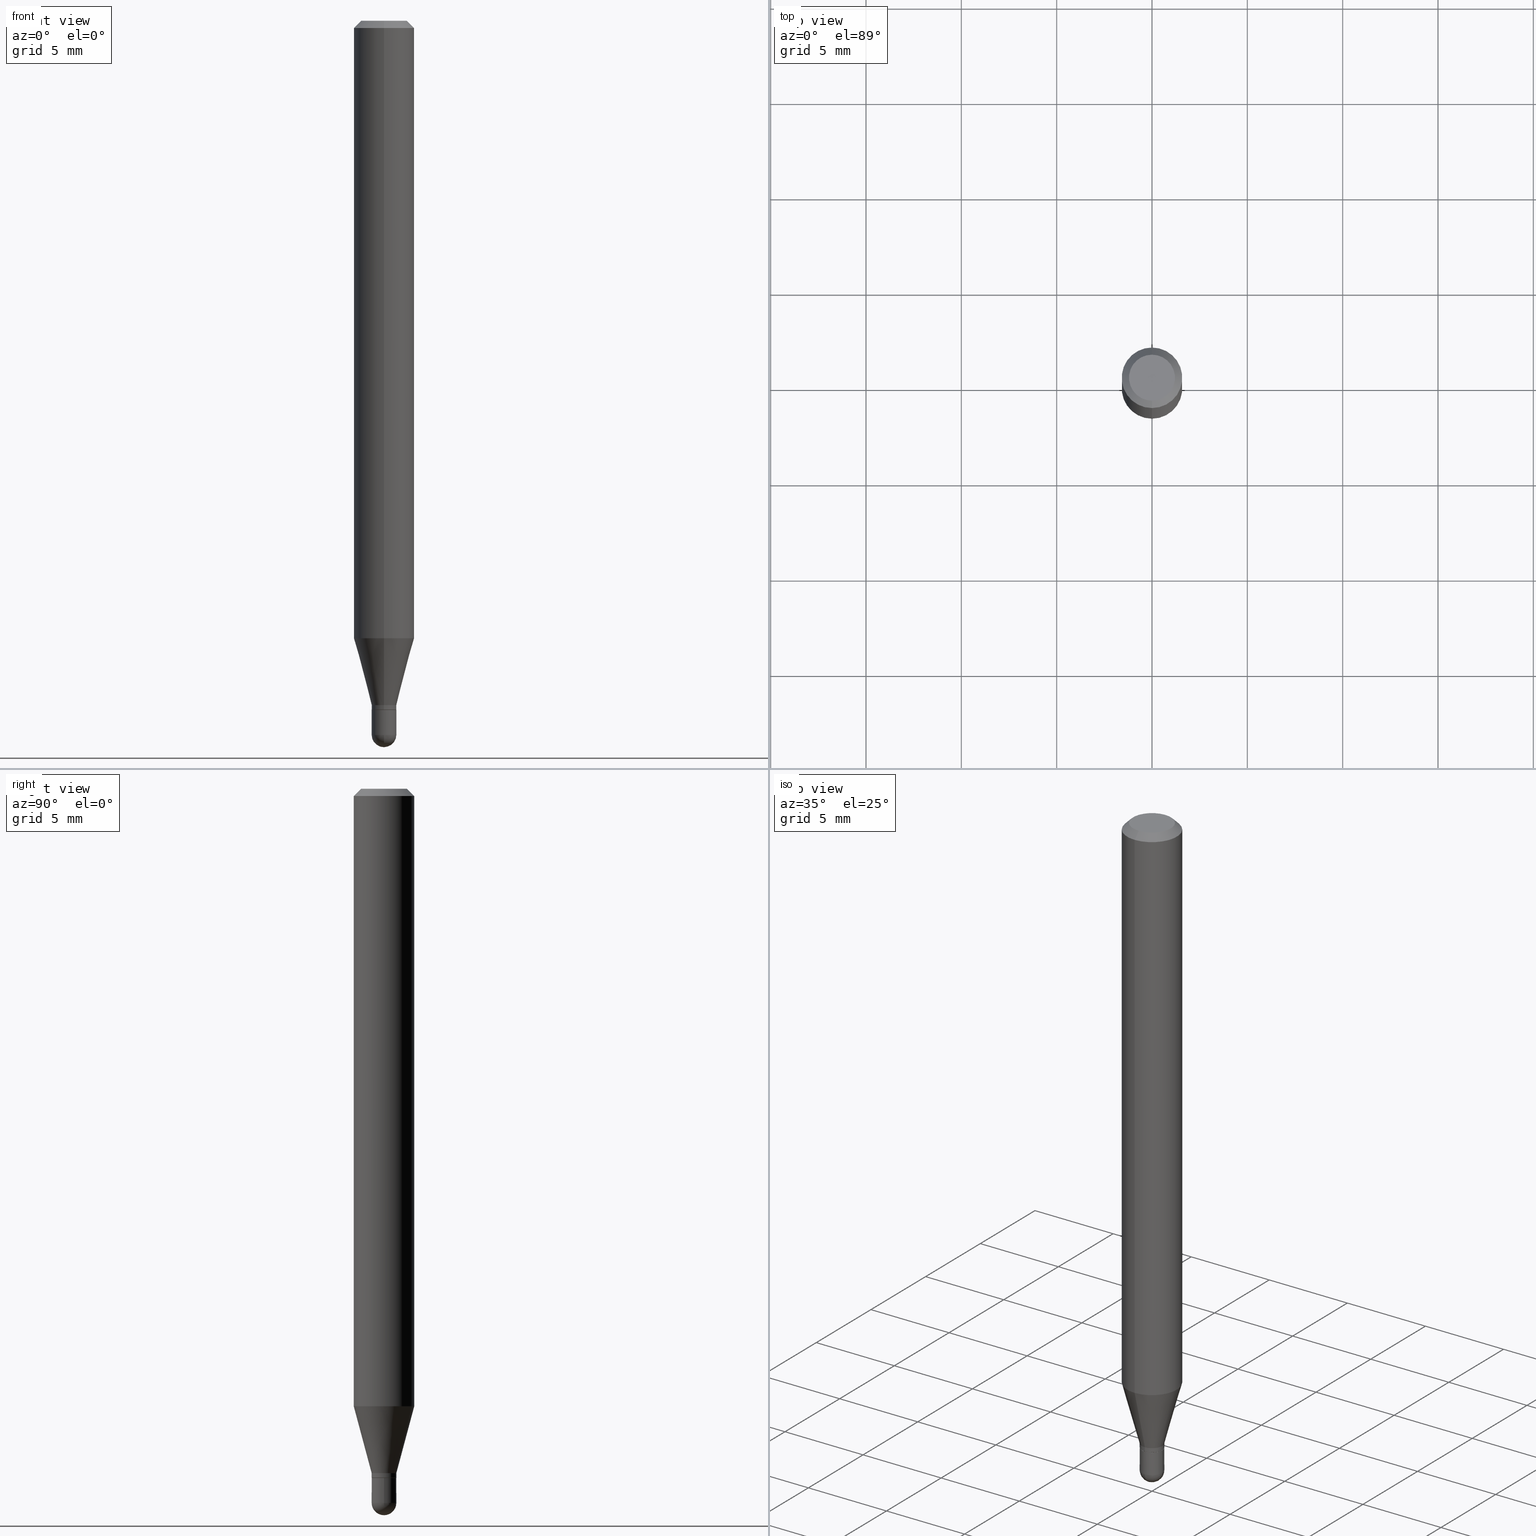
[diagram: canonical four-view strip — front | top / right | iso, engineering-drawing reading convention]
A machine part, canonical four-view strip (front | top / right | iso — engineering-drawing reading convention). The complete STEP part file that produces these views, byte-faithful:
ISO-10303-21;
HEADER;
FILE_DESCRIPTION (( 'STEP AP203' ),
    '1' );
FILE_NAME ('00786.STEP',
    '2024-03-07T18:21:10',
    ( '' ),
    ( '' ),
    'SwSTEP 2.0',
    'SolidWorks 2023',
    '' );
FILE_SCHEMA (( 'CONFIG_CONTROL_DESIGN' ));
ENDSEC;

DATA;
#1 = CYLINDRICAL_SURFACE ( 'NONE', #96, 0.02549999999999999836 ) ;
#2 = AXIS2_PLACEMENT_3D ( 'NONE', #325, #208, #285 ) ;
#3 = AXIS2_PLACEMENT_3D ( 'NONE', #170, #401, #89 ) ;
#4 = AXIS2_PLACEMENT_3D ( 'NONE', #120, #311, #229 ) ;
#5 = DIRECTION ( 'NONE',  ( 6.982962677686266711E-15, 1.000000000000000000, 0.000000000000000000 ) ) ;
#6 = ADVANCED_FACE ( 'NONE', ( #394 ), #131, .T. ) ;
#7 = FACE_OUTER_BOUND ( 'NONE', #431, .T. ) ;
#8 = CARTESIAN_POINT ( 'NONE',  ( 2.166988315906945118E-46, -3.093852490145761487E-32, -8.861192345705441465E-18 ) ) ;
#9 = APPROVAL_STATUS ( 'not_yet_approved' ) ;
#10 = CIRCLE ( 'NONE', #2, 0.02499999999999999792 ) ;
#11 = CARTESIAN_POINT ( 'NONE',  ( 4.364351673553919652E-16, 0.06249999999999995143, -0.01500000000000022669 ) ) ;
#12 = EDGE_CURVE ( 'NONE', #41, #496, #98, .T. ) ;
#13 = PERSON_AND_ORGANIZATION_ROLE ( 'design_supplier' ) ;
#14 = DIRECTION ( 'NONE',  ( -2.445481636517202422E-29, 3.491462965077369898E-15, 1.000000000000000000 ) ) ;
#15 = DATE_AND_TIME ( #108, #97 ) ;
#16 = ORIENTED_EDGE ( 'NONE', *, *, #450, .T. ) ;
#17 = DIRECTION ( 'NONE',  ( 6.982962677686266711E-15, 1.000000000000000000, 0.000000000000000000 ) ) ;
#18 = PERSON_AND_ORGANIZATION ( #94, #320 ) ;
#19 = LOCAL_TIME ( 13, 21, 10.00000000000000000, #217 ) ;
#20 = CARTESIAN_POINT ( 'NONE',  ( -4.364351673553916201E-16, -0.06250000000000000000, 2.182164353173356186E-16 ) ) ;
#21 = LENGTH_MEASURE_WITH_UNIT ( LENGTH_MEASURE( 0.02539999999999999897 ), #369 );
#22 = ORIENTED_EDGE ( 'NONE', *, *, #209, .T. ) ;
#23 = CARTESIAN_POINT ( 'NONE',  ( -1.745740669421218346E-16, -0.02500000000000496617, -1.423000000000000043 ) ) ;
#24 = ORIENTED_EDGE ( 'NONE', *, *, #113, .F. ) ;
#25 = DIRECTION ( 'NONE',  ( -2.445481636517202422E-29, 3.491462965077369898E-15, 1.000000000000000000 ) ) ;
#26 = EDGE_CURVE ( 'NONE', #274, #433, #76, .T. ) ;
#27 = ORIENTED_EDGE ( 'NONE', *, *, #26, .T. ) ;
#28 = CONICAL_SURFACE ( 'NONE', #99, 0.02549999999999992550, 0.2617993877991502960 ) ;
#29 = CONICAL_SURFACE ( 'NONE', #507, 0.02499999999999999792, 0.7853981633974739252 ) ;
#30 = DIRECTION ( 'NONE',  ( -6.982962677686266711E-15, -1.000000000000000000, 0.000000000000000000 ) ) ;
#31 = CLOSED_SHELL ( 'NONE', ( #298, #6, #158, #202, #38 ) ) ;
#32 = ORIENTED_EDGE ( 'NONE', *, *, #87, .F. ) ;
#33 = VECTOR ( 'NONE', #305, 39.37007874015748143 ) ;
#34 = DIRECTION ( 'NONE',  ( -2.445481636517202422E-29, 3.491462965077369898E-15, 1.000000000000000000 ) ) ;
#35 = ORIENTED_EDGE ( 'NONE', *, *, #323, .F. ) ;
#36 = PLANE ( 'NONE',  #4 ) ;
#37 = ORIENTED_EDGE ( 'NONE', *, *, #332, .F. ) ;
#38 = ADVANCED_FACE ( 'NONE', ( #7 ), #1, .T. ) ;
#39 = DIRECTION ( 'NONE',  ( -2.445481636517202422E-29, 3.491462965077369898E-15, 1.000000000000000000 ) ) ;
#40 = CIRCLE ( 'NONE', #271, 0.06250000000000000000 ) ;
#41 = VERTEX_POINT ( 'NONE', #324 ) ;
#42 = DIRECTION ( 'NONE',  ( -1.000000000000000000, 6.982962677686265922E-15, -4.876176775795935793E-29 ) ) ;
#43 = LINE ( 'NONE', #444, #449 ) ;
#44 = CC_DESIGN_DATE_AND_TIME_ASSIGNMENT ( #419, #58, ( #154 ) ) ;
#45 = DIRECTION ( 'NONE',  ( -2.445468806185136597E-29, 3.491481338843145583E-15, 1.000000000000000000 ) ) ;
#46 = CC_DESIGN_PERSON_AND_ORGANIZATION_ASSIGNMENT ( #54, #136, ( #49 ) ) ;
#47 = CONICAL_SURFACE ( 'NONE', #453, 0.02499999999999999792, 0.7853981633974739252 ) ;
#48 = EDGE_CURVE ( 'NONE', #257, #138, #328, .T. ) ;
#49 = SECURITY_CLASSIFICATION ( '', '', #172 ) ;
#50 = AXIS2_PLACEMENT_3D ( 'NONE', #273, #344, #236 ) ;
#51 = CARTESIAN_POINT ( 'NONE',  ( 1.780655482810359379E-16, 0.02549999999999486011, -1.474500000000000144 ) ) ;
#52 = VERTEX_POINT ( 'NONE', #51 ) ;
#53 = CARTESIAN_POINT ( 'NONE',  ( -4.364351673553606080E-16, -0.06250000000000446865, -1.274914120119951644 ) ) ;
#54 = PERSON_AND_ORGANIZATION ( #94, #320 ) ;
#55 = ORIENTED_EDGE ( 'NONE', *, *, #178, .F. ) ;
#56 = AXIS2_PLACEMENT_3D ( 'NONE', #79, #25, #462 ) ;
#57 = DIRECTION ( 'NONE',  ( 4.937700262164548042E-15, 0.7071067811865451302, -0.7071067811865499042 ) ) ;
#58 = DATE_TIME_ROLE ( 'creation_date' ) ;
#59 = VERTEX_POINT ( 'NONE', #164 ) ;
#60 = LINE ( 'NONE', #452, #73 ) ;
#61 = EDGE_LOOP ( 'NONE', ( #228, #307 ) ) ;
#62 = DIRECTION ( 'NONE',  ( 6.982962677686265922E-15, 1.000000000000000000, -3.483106191921935554E-15 ) ) ;
#63 = APPROVAL_DATE_TIME ( #415, #354 ) ;
#64 = ORIENTED_EDGE ( 'NONE', *, *, #412, .T. ) ;
#65 =( GEOMETRIC_REPRESENTATION_CONTEXT ( 3 ) GLOBAL_UNCERTAINTY_ASSIGNED_CONTEXT ( ( #132 ) ) GLOBAL_UNIT_ASSIGNED_CONTEXT ( ( #174, #413, #182 ) ) REPRESENTATION_CONTEXT ( 'NONE', 'WORKASPACE' ) );
#66 = DIRECTION ( 'NONE',  ( -2.445481636517202422E-29, 3.491462965077369898E-15, 1.000000000000000000 ) ) ;
#67 = COORDINATED_UNIVERSAL_TIME_OFFSET ( 5, 0, .BEHIND. ) ;
#68 = DIRECTION ( 'NONE',  ( -2.445481636517202422E-29, 3.491462965077369898E-15, 1.000000000000000000 ) ) ;
#69 = ORIENTED_EDGE ( 'NONE', *, *, #165, .T. ) ;
#70 = EDGE_CURVE ( 'NONE', #422, #433, #43, .T. ) ;
#71 = LINE ( 'NONE', #506, #478 ) ;
#72 = ORIENTED_EDGE ( 'NONE', *, *, #503, .F. ) ;
#73 = VECTOR ( 'NONE', #181, 39.37007874015748143 ) ;
#74 = CONICAL_SURFACE ( 'NONE', #240, 0.02549999999999992550, 0.2617993877991502960 ) ;
#75 = DIRECTION ( 'NONE',  ( -4.937700262164674260E-15, -0.7071067811865632269, 0.7071067811865319186 ) ) ;
#76 = CIRCLE ( 'NONE', #359, 0.06250000000000000000 ) ;
#77 = ORIENTED_EDGE ( 'NONE', *, *, #104, .F. ) ;
#78 = AXIS2_PLACEMENT_3D ( 'NONE', #103, #221, #215 ) ;
#79 = CARTESIAN_POINT ( 'NONE',  ( 0.000000000000000000, 0.000000000000000000, 0.000000000000000000 ) ) ;
#80 = ORIENTED_EDGE ( 'NONE', *, *, #129, .T. ) ;
#81 = DIRECTION ( 'NONE',  ( -6.982962677686266711E-15, -1.000000000000000000, 0.000000000000000000 ) ) ;
#82 = ORIENTED_EDGE ( 'NONE', *, *, #395, .F. ) ;
#83 = CARTESIAN_POINT ( 'NONE',  ( -1.780655482809647185E-16, -0.02550000000000486253, -1.413000000000000256 ) ) ;
#84 = DIRECTION ( 'NONE',  ( 1.000000000000000000, -6.982962677686275388E-15, 0.000000000000000000 ) ) ;
#85 = AXIS2_PLACEMENT_3D ( 'NONE', #493, #327, #171 ) ;
#86 = CARTESIAN_POINT ( 'NONE',  ( 4.440892098500935790E-16, 0.06249999999999553135, -1.274914120119952310 ) ) ;
#87 = EDGE_CURVE ( 'NONE', #230, #422, #427, .T. ) ;
#88 = DIRECTION ( 'NONE',  ( 1.000000000000000000, -6.982962677686266711E-15, 4.876176775795935793E-29 ) ) ;
#89 = DIRECTION ( 'NONE',  ( -6.982962677686266711E-15, -1.000000000000000000, 0.000000000000000000 ) ) ;
#90 = ORIENTED_EDGE ( 'NONE', *, *, #48, .T. ) ;
#91 = SPHERICAL_SURFACE ( 'NONE', #304, 0.02550000000000002612 ) ;
#92 = CALENDAR_DATE ( 2024, 7, 3 ) ;
#93 = EDGE_LOOP ( 'NONE', ( #301, #416, #77, #379 ) ) ;
#94 = PERSON ( 'UNSPECIFIED', 'UNSPECIFIED', 'UNSPECIFIED', ('UNSPECIFIED'), ('UNSPECIFIED'), ('UNSPECIFIED') ) ;
#95 = CARTESIAN_POINT ( 'NONE',  ( 3.603663080682576322E-29, -5.151312083462043978E-15, -1.474500000000000144 ) ) ;
#96 = AXIS2_PLACEMENT_3D ( 'NONE', #246, #45, #88 ) ;
#97 = LOCAL_TIME ( 13, 21, 10.00000000000000000, #67 ) ;
#98 = CIRCLE ( 'NONE', #3, 0.02549999999999992550 ) ;
#99 = AXIS2_PLACEMENT_3D ( 'NONE', #191, #34, #30 ) ;
#100 = DIRECTION ( 'NONE',  ( 1.000000000000000000, -6.982962677686265922E-15, 4.883557194083112340E-29 ) ) ;
#101 = COORDINATED_UNIVERSAL_TIME_OFFSET ( 5, 0, .BEHIND. ) ;
#102 = ORIENTED_EDGE ( 'NONE', *, *, #288, .T. ) ;
#103 = CARTESIAN_POINT ( 'NONE',  ( 3.478697627945721307E-29, -4.966606067822559678E-15, -1.422500000000000098 ) ) ;
#104 = EDGE_CURVE ( 'NONE', #496, #41, #122, .T. ) ;
#105 = APPROVAL_STATUS ( 'not_yet_approved' ) ;
#106 = ORIENTED_EDGE ( 'NONE', *, *, #209, .F. ) ;
#107 = FACE_OUTER_BOUND ( 'NONE', #405, .T. ) ;
#108 = CALENDAR_DATE ( 2024, 7, 3 ) ;
#109 = AXIS2_PLACEMENT_3D ( 'NONE', #509, #161, #470 ) ;
#110 = CONICAL_SURFACE ( 'NONE', #148, 0.06250000000000000000, 0.7853981633974483900 ) ;
#111 = CARTESIAN_POINT ( 'NONE',  ( 0.02549999999999999836, -1.780655482809997982E-16, 1.243425077827963501E-30 ) ) ;
#112 = ORIENTED_EDGE ( 'NONE', *, *, #503, .T. ) ;
#113 = EDGE_CURVE ( 'NONE', #422, #230, #367, .T. ) ;
#114 = DIRECTION ( 'NONE',  ( 6.982962677686265922E-15, 1.000000000000000000, -3.483106191921935554E-15 ) ) ;
#115 = ORIENTED_EDGE ( 'NONE', *, *, #12, .T. ) ;
#116 = CARTESIAN_POINT ( 'NONE',  ( -3.773273898774340269E-16, -0.04749999999999999362, 1.569832984954696276E-16 ) ) ;
#117 = ORIENTED_EDGE ( 'NONE', *, *, #104, .T. ) ;
#118 = AXIS2_PLACEMENT_3D ( 'NONE', #135, #296, #176 ) ;
#119 = AXIS2_PLACEMENT_3D ( 'NONE', #501, #468, #114 ) ;
#120 = CARTESIAN_POINT ( 'NONE',  ( 3.316907271900976096E-16, 0.04749999999999999362, -1.702750870140277613E-16 ) ) ;
#121 = ORIENTED_EDGE ( 'NONE', *, *, #372, .T. ) ;
#122 = CIRCLE ( 'NONE', #381, 0.02549999999999992550 ) ;
#123 = DIRECTION ( 'NONE',  ( -2.445468806185136877E-29, 3.491481338843145188E-15, 1.000000000000000000 ) ) ;
#124 = EDGE_CURVE ( 'NONE', #389, #237, #10, .T. ) ;
#125 = ORIENTED_EDGE ( 'NONE', *, *, #303, .F. ) ;
#126 = DIRECTION ( 'NONE',  ( -6.982962677686266711E-15, -1.000000000000000000, 3.491462965077370292E-15 ) ) ;
#127 = CARTESIAN_POINT ( 'NONE',  ( 2.166988315906945118E-46, -3.093852490145761487E-32, -8.861192345705441465E-18 ) ) ;
#128 = AXIS2_PLACEMENT_3D ( 'NONE', #402, #512, #42 ) ;
#129 = EDGE_CURVE ( 'NONE', #237, #260, #279, .T. ) ;
#130 = ORIENTED_EDGE ( 'NONE', *, *, #178, .T. ) ;
#131 = SPHERICAL_SURFACE ( 'NONE', #498, 0.02550000000000002612 ) ;
#132 = UNCERTAINTY_MEASURE_WITH_UNIT (LENGTH_MEASURE( 1.000000000000000082E-05 ), #174, 'distance_accuracy_value', 'NONE');
#133 = DIRECTION ( 'NONE',  ( -6.982962677686265922E-15, -1.000000000000000000, 3.483106191921935554E-15 ) ) ;
#134 = CARTESIAN_POINT ( 'NONE',  ( 1.811883976188591117E-16, 0.02549999999999486705, -1.422500000000000098 ) ) ;
#135 = CARTESIAN_POINT ( 'NONE',  ( 3.117779068889829292E-29, -4.451315434053013459E-15, -1.274914120119952088 ) ) ;
#136 = PERSON_AND_ORGANIZATION_ROLE ( 'classification_officer' ) ;
#137 = CARTESIAN_POINT ( 'NONE',  ( 0.000000000000000000, 0.000000000000000000, 0.000000000000000000 ) ) ;
#138 = VERTEX_POINT ( 'NONE', #86 ) ;
#139 = CIRCLE ( 'NONE', #333, 0.02549999999999992203 ) ;
#140 = CIRCLE ( 'NONE', #109, 0.02549999999999999836 ) ;
#141 = EDGE_CURVE ( 'NONE', #150, #345, #439, .T. ) ;
#142 = AXIS2_PLACEMENT_3D ( 'NONE', #137, #414, #292 ) ;
#143 = CYLINDRICAL_SURFACE ( 'NONE', #488, 0.06250000000000000000 ) ;
#144 = CARTESIAN_POINT ( 'NONE',  ( 4.440892098500939734E-16, 0.06249999999999995143, -0.01500000000000022669 ) ) ;
#145 = APPLICATION_PROTOCOL_DEFINITION ( 'international standard', 'config_control_design', 1994, #355 ) ;
#146 = CARTESIAN_POINT ( 'NONE',  ( 0.000000000000000000, 0.000000000000000000, 0.000000000000000000 ) ) ;
#147 = VERTEX_POINT ( 'NONE', #435 ) ;
#148 = AXIS2_PLACEMENT_3D ( 'NONE', #289, #255, #62 ) ;
#149 = FACE_OUTER_BOUND ( 'NONE', #502, .T. ) ;
#150 = VERTEX_POINT ( 'NONE', #397 ) ;
#151 = CYLINDRICAL_SURFACE ( 'NONE', #443, 0.02549999999999992203 ) ;
#152 = DATE_AND_TIME ( #306, #199 ) ;
#153 = ORIENTED_EDGE ( 'NONE', *, *, #308, .F. ) ;
#154 = PRODUCT_DEFINITION ( 'UNKNOWN', '', #383, #250 ) ;
#155 = DIRECTION ( 'NONE',  ( -2.445481636517202422E-29, 3.491462965077369898E-15, 1.000000000000000000 ) ) ;
#156 = ORIENTED_EDGE ( 'NONE', *, *, #438, .T. ) ;
#157 = APPLICATION_CONTEXT ( 'configuration controlled 3d designs of mechanical parts and assemblies' ) ;
#158 = ADVANCED_FACE ( 'NONE', ( #248 ), #280, .F. ) ;
#159 = DIRECTION ( 'NONE',  ( 1.839019923739601104E-15, 0.2588190451025250693, 0.9659258262890670910 ) ) ;
#160 = VERTEX_POINT ( 'NONE', #353 ) ;
#161 = DIRECTION ( 'NONE',  ( -2.445468806185136597E-29, 3.491481338843145583E-15, 1.000000000000000000 ) ) ;
#162 = ORIENTED_EDGE ( 'NONE', *, *, #267, .F. ) ;
#163 = ADVANCED_FACE ( 'NONE', ( #440 ), #47, .T. ) ;
#164 = CARTESIAN_POINT ( 'NONE',  ( -1.811883976187895686E-16, -0.02550000000000516437, -1.474500000000000144 ) ) ;
#165 = EDGE_CURVE ( 'NONE', #188, #52, #214, .T. ) ;
#166 = LOCAL_TIME ( 13, 21, 10.00000000000000000, #222 ) ;
#167 = ORIENTED_EDGE ( 'NONE', *, *, #129, .F. ) ;
#168 = AXIS2_PLACEMENT_3D ( 'NONE', #258, #456, #368 ) ;
#169 = DIRECTION ( 'NONE',  ( -2.445481636517202422E-29, 3.491462965077369898E-15, 1.000000000000000000 ) ) ;
#170 = CARTESIAN_POINT ( 'NONE',  ( 3.455465552398807557E-29, -4.933437169654324770E-15, -1.413000000000000256 ) ) ;
#171 = DIRECTION ( 'NONE',  ( -6.982962677686265922E-15, -1.000000000000000000, 3.491462965077369898E-15 ) ) ;
#172 = SECURITY_CLASSIFICATION_LEVEL ( 'unclassified' ) ;
#173 = LINE ( 'NONE', #11, #190 ) ;
#174 =( CONVERSION_BASED_UNIT ( 'INCH', #21 ) LENGTH_UNIT ( ) NAMED_UNIT ( #408 ) );
#175 = PRODUCT ( '00786', '00786', '', ( #404 ) ) ;
#176 = DIRECTION ( 'NONE',  ( -6.982962677686265922E-15, -1.000000000000000000, 4.370956789862821150E-15 ) ) ;
#177 = DATE_AND_TIME ( #213, #166 ) ;
#178 = EDGE_CURVE ( 'NONE', #496, #257, #60, .T. ) ;
#179 = DIRECTION ( 'NONE',  ( 6.982962677686265922E-15, 1.000000000000000000, 0.000000000000000000 ) ) ;
#180 = APPROVAL_STATUS ( 'not_yet_approved' ) ;
#181 = DIRECTION ( 'NONE',  ( -1.807323732225330928E-15, -0.2588190451025182970, 0.9659258262890689783 ) ) ;
#182 =( NAMED_UNIT ( * ) SI_UNIT ( $, .STERADIAN. ) SOLID_ANGLE_UNIT ( ) );
#183 = ORIENTED_EDGE ( 'NONE', *, *, #141, .F. ) ;
#184 = DIRECTION ( 'NONE',  ( -2.445468806185136597E-29, 3.491481338843145583E-15, 1.000000000000000000 ) ) ;
#185 = SHAPE_DEFINITION_REPRESENTATION ( #300, #363 ) ;
#186 = ORIENTED_EDGE ( 'NONE', *, *, #438, .F. ) ;
#187 = DIRECTION ( 'NONE',  ( -2.445468806185136877E-29, 3.491481338843145188E-15, 1.000000000000000000 ) ) ;
#188 = VERTEX_POINT ( 'NONE', #249 ) ;
#189 = VECTOR ( 'NONE', #123, 39.37007874015748143 ) ;
#190 = VECTOR ( 'NONE', #57, 39.37007874015748143 ) ;
#191 = CARTESIAN_POINT ( 'NONE',  ( 3.455465552398807557E-29, -4.933437169654324770E-15, -1.413000000000000256 ) ) ;
#192 = ORIENTED_EDGE ( 'NONE', *, *, #12, .F. ) ;
#193 = CC_DESIGN_PERSON_AND_ORGANIZATION_ASSIGNMENT ( #219, #13, ( #383 ) ) ;
#194 = CARTESIAN_POINT ( 'NONE',  ( 3.479920368763979217E-29, -4.968351799305097984E-15, -1.423000000000000043 ) ) ;
#195 = ORIENTED_EDGE ( 'NONE', *, *, #113, .T. ) ;
#196 = EDGE_CURVE ( 'NONE', #266, #260, #139, .T. ) ;
#197 = CARTESIAN_POINT ( 'NONE',  ( 3.605843754719984351E-29, -5.148189234124218339E-15, -1.474500000000000144 ) ) ;
#198 = ORIENTED_EDGE ( 'NONE', *, *, #387, .T. ) ;
#199 = LOCAL_TIME ( 13, 21, 10.00000000000000000, #492 ) ;
#200 = DIRECTION ( 'NONE',  ( -6.982962677686265133E-15, -1.000000000000000000, 0.000000000000000000 ) ) ;
#201 = ORIENTED_EDGE ( 'NONE', *, *, #332, .T. ) ;
#202 = ADVANCED_FACE ( 'NONE', ( #490 ), #91, .T. ) ;
#203 = DIRECTION ( 'NONE',  ( -6.982962677686265922E-15, -1.000000000000000000, 4.370956789862821150E-15 ) ) ;
#204 = DIRECTION ( 'NONE',  ( -6.982962677686266711E-15, -1.000000000000000000, 0.000000000000000000 ) ) ;
#205 = CC_DESIGN_APPROVAL ( #447, ( #154 ) ) ;
#206 = DIRECTION ( 'NONE',  ( -4.851104656540964275E-15, -0.7071067811865500152, -0.7071067811865450192 ) ) ;
#207 = AXIS2_PLACEMENT_3D ( 'NONE', #282, #242, #84 ) ;
#208 = DIRECTION ( 'NONE',  ( -2.445481636517202422E-29, 3.491462965077369898E-15, 1.000000000000000000 ) ) ;
#209 = EDGE_CURVE ( 'NONE', #138, #257, #409, .T. ) ;
#210 = DIRECTION ( 'NONE',  ( -2.445481636517202422E-29, 3.491462965077369898E-15, 1.000000000000000000 ) ) ;
#211 = EDGE_CURVE ( 'NONE', #188, #59, #358, .T. ) ;
#212 = FACE_OUTER_BOUND ( 'NONE', #239, .T. ) ;
#213 = CALENDAR_DATE ( 2024, 7, 3 ) ;
#214 = CIRCLE ( 'NONE', #473, 0.02550000000000002612 ) ;
#215 = DIRECTION ( 'NONE',  ( -6.982962677686265922E-15, -1.000000000000000000, 0.000000000000000000 ) ) ;
#216 = ADVANCED_FACE ( 'NONE', ( #407 ), #448, .F. ) ;
#217 = COORDINATED_UNIVERSAL_TIME_OFFSET ( 5, 0, .BEHIND. ) ;
#218 = CARTESIAN_POINT ( 'NONE',  ( 3.603663080682576322E-29, -5.151312083462043978E-15, -1.474500000000000144 ) ) ;
#219 = PERSON_AND_ORGANIZATION ( #94, #320 ) ;
#220 = ORIENTED_EDGE ( 'NONE', *, *, #124, .T. ) ;
#221 = DIRECTION ( 'NONE',  ( -2.445481636517202422E-29, 3.491462965077369898E-15, 1.000000000000000000 ) ) ;
#222 = COORDINATED_UNIVERSAL_TIME_OFFSET ( 5, 0, .BEHIND. ) ;
#223 = ORIENTED_EDGE ( 'NONE', *, *, #124, .F. ) ;
#224 = AXIS2_PLACEMENT_3D ( 'NONE', #275, #184, #426 ) ;
#225 = FACE_OUTER_BOUND ( 'NONE', #312, .T. ) ;
#226 = ORIENTED_EDGE ( 'NONE', *, *, #510, .F. ) ;
#227 = CARTESIAN_POINT ( 'NONE',  ( 0.000000000000000000, 0.000000000000000000, 0.000000000000000000 ) ) ;
#228 = ORIENTED_EDGE ( 'NONE', *, *, #141, .T. ) ;
#229 = DIRECTION ( 'NONE',  ( 6.982962677686265922E-15, 1.000000000000000000, -3.491462965077369898E-15 ) ) ;
#230 = VERTEX_POINT ( 'NONE', #334 ) ;
#231 = VECTOR ( 'NONE', #187, 39.37007874015748143 ) ;
#232 = CIRCLE ( 'NONE', #319, 0.02549999999999999836 ) ;
#233 = FACE_OUTER_BOUND ( 'NONE', #386, .T. ) ;
#234 = EDGE_CURVE ( 'NONE', #230, #274, #173, .T. ) ;
#235 = ORIENTED_EDGE ( 'NONE', *, *, #395, .T. ) ;
#236 = DIRECTION ( 'NONE',  ( 1.000000000000000000, -6.982962677686275388E-15, 0.000000000000000000 ) ) ;
#237 = VERTEX_POINT ( 'NONE', #329 ) ;
#238 = DIRECTION ( 'NONE',  ( -2.445481636517202422E-29, 3.491462965077369898E-15, 1.000000000000000000 ) ) ;
#239 = EDGE_LOOP ( 'NONE', ( #24, #465, #112, #382 ) ) ;
#240 = AXIS2_PLACEMENT_3D ( 'NONE', #341, #385, #81 ) ;
#241 = AXIS2_PLACEMENT_3D ( 'NONE', #127, #210, #126 ) ;
#242 = DIRECTION ( 'NONE',  ( -2.445468806185136597E-29, 3.491481338843145583E-15, 1.000000000000000000 ) ) ;
#243 = CARTESIAN_POINT ( 'NONE',  ( 3.479920368763979217E-29, -4.968351799305097984E-15, -1.423000000000000043 ) ) ;
#244 = CARTESIAN_POINT ( 'NONE',  ( 3.603663080682576322E-29, -5.151312083462043978E-15, -1.474500000000000144 ) ) ;
#245 = CC_DESIGN_PERSON_AND_ORGANIZATION_ASSIGNMENT ( #410, #480, ( #175 ) ) ;
#246 = CARTESIAN_POINT ( 'NONE',  ( 0.000000000000000000, 0.000000000000000000, 0.000000000000000000 ) ) ;
#247 = ADVANCED_FACE ( 'NONE', ( #212 ), #110, .T. ) ;
#248 = FACE_OUTER_BOUND ( 'NONE', #61, .T. ) ;
#249 = CARTESIAN_POINT ( 'NONE',  ( 3.667112872259001161E-29, -5.238783432933631391E-15, -1.500000000000000222 ) ) ;
#250 = DESIGN_CONTEXT ( 'detailed design', #157, 'design' ) ;
#251 = DIRECTION ( 'NONE',  ( -1.000000000000000000, 6.982962677686266711E-15, -4.883557194083112901E-29 ) ) ;
#252 = CIRCLE ( 'NONE', #224, 0.02549999999999999836 ) ;
#253 = PERSON_AND_ORGANIZATION_ROLE ( 'creator' ) ;
#254 = ORIENTED_EDGE ( 'NONE', *, *, #303, .T. ) ;
#255 = DIRECTION ( 'NONE',  ( 2.445481636517202422E-29, -3.491462965077369898E-15, -1.000000000000000000 ) ) ;
#256 = PERSON_AND_ORGANIZATION_ROLE ( 'creator' ) ;
#257 = VERTEX_POINT ( 'NONE', #53 ) ;
#258 = CARTESIAN_POINT ( 'NONE',  ( 3.603663080682576322E-29, -5.151312083462043978E-15, -1.474500000000000144 ) ) ;
#259 = CALENDAR_DATE ( 2024, 7, 3 ) ;
#260 = VERTEX_POINT ( 'NONE', #134 ) ;
#261 = DIRECTION ( 'NONE',  ( -2.445481636517202422E-29, 3.491462965077369898E-15, 1.000000000000000000 ) ) ;
#262 = APPROVAL_DATE_TIME ( #15, #447 ) ;
#263 = DIRECTION ( 'NONE',  ( 1.000000000000000000, -6.982962677686275388E-15, 0.000000000000000000 ) ) ;
#264 = ORIENTED_EDGE ( 'NONE', *, *, #372, .F. ) ;
#265 = LINE ( 'NONE', #342, #33 ) ;
#266 = VERTEX_POINT ( 'NONE', #482 ) ;
#267 = EDGE_CURVE ( 'NONE', #260, #266, #500, .T. ) ;
#268 = LINE ( 'NONE', #111, #189 ) ;
#269 = ORIENTED_EDGE ( 'NONE', *, *, #377, .T. ) ;
#270 = VECTOR ( 'NONE', #474, 39.37007874015748143 ) ;
#271 = AXIS2_PLACEMENT_3D ( 'NONE', #315, #39, #351 ) ;
#272 = CIRCLE ( 'NONE', #50, 0.02549999999999999836 ) ;
#273 = CARTESIAN_POINT ( 'NONE',  ( 3.605843754719984351E-29, -5.148189234124218339E-15, -1.474500000000000144 ) ) ;
#274 = VERTEX_POINT ( 'NONE', #144 ) ;
#275 = CARTESIAN_POINT ( 'NONE',  ( 3.605843754719984351E-29, -5.148189234124218339E-15, -1.474500000000000144 ) ) ;
#276 = ORIENTED_EDGE ( 'NONE', *, *, #48, .F. ) ;
#277 = CARTESIAN_POINT ( 'NONE',  ( 3.479920368763979217E-29, -4.968351799305097984E-15, -1.423000000000000043 ) ) ;
#278 = CARTESIAN_POINT ( 'NONE',  ( 1.776356839400597909E-16, 0.02499999999999502967, -1.423000000000000043 ) ) ;
#279 = LINE ( 'NONE', #278, #270 ) ;
#280 = PLANE ( 'NONE',  #128 ) ;
#281 = ADVANCED_FACE ( 'NONE', ( #225 ), #143, .T. ) ;
#282 = CARTESIAN_POINT ( 'NONE',  ( 3.479902111201449341E-29, -4.968377945173796372E-15, -1.423000000000000043 ) ) ;
#283 = MANIFOLD_SOLID_BREP ( 'Body-Move/Copy2[1]', #31 ) ;
#284 = CC_DESIGN_SECURITY_CLASSIFICATION ( #49, ( #383 ) ) ;
#285 = DIRECTION ( 'NONE',  ( -6.982962677686265133E-15, -1.000000000000000000, 0.000000000000000000 ) ) ;
#286 = CARTESIAN_POINT ( 'NONE',  ( 3.479902111201449341E-29, -4.968377945173796372E-15, -1.423000000000000043 ) ) ;
#287 = DIRECTION ( 'NONE',  ( 0.000000000000000000, 0.000000000000000000, 1.000000000000000000 ) ) ;
#288 = EDGE_CURVE ( 'NONE', #266, #496, #485, .T. ) ;
#289 = CARTESIAN_POINT ( 'NONE',  ( 3.668222454775805910E-31, -5.237194447616058495E-17, -0.01500000000000000812 ) ) ;
#290 = PERSON_AND_ORGANIZATION ( #94, #320 ) ;
#291 = AXIS2_PLACEMENT_3D ( 'NONE', #356, #441, #203 ) ;
#292 = DIRECTION ( 'NONE',  ( 1.000000000000000000, -6.982962677686266711E-15, 4.876176775795935793E-29 ) ) ;
#293 = APPROVAL_ROLE ( '' ) ;
#294 = EDGE_LOOP ( 'NONE', ( #167, #121, #16, #162 ) ) ;
#295 = CC_DESIGN_PERSON_AND_ORGANIZATION_ASSIGNMENT ( #454, #253, ( #154 ) ) ;
#296 = DIRECTION ( 'NONE',  ( -2.445481636517202422E-29, 3.491462965077369898E-15, 1.000000000000000000 ) ) ;
#297 = CYLINDRICAL_SURFACE ( 'NONE', #142, 0.02549999999999999836 ) ;
#298 = ADVANCED_FACE ( 'NONE', ( #107 ), #297, .T. ) ;
#299 = DIRECTION ( 'NONE',  ( -6.982962677686265922E-15, -1.000000000000000000, 3.491462965077370292E-15 ) ) ;
#300 = PRODUCT_DEFINITION_SHAPE ( 'NONE', 'NONE',  #154 ) ;
#301 = ORIENTED_EDGE ( 'NONE', *, *, #196, .T. ) ;
#302 = VECTOR ( 'NONE', #75, 39.37007874015748143 ) ;
#303 = EDGE_CURVE ( 'NONE', #257, #433, #374, .T. ) ;
#304 = AXIS2_PLACEMENT_3D ( 'NONE', #218, #251, #17 ) ;
#305 = DIRECTION ( 'NONE',  ( -2.445481636517202422E-29, 3.491462965077369898E-15, 1.000000000000000000 ) ) ;
#306 = CALENDAR_DATE ( 2024, 7, 3 ) ;
#307 = ORIENTED_EDGE ( 'NONE', *, *, #323, .T. ) ;
#308 = EDGE_CURVE ( 'NONE', #260, #41, #411, .T. ) ;
#309 = CARTESIAN_POINT ( 'NONE',  ( -0.02549999999999999836, -4.877095192030181253E-15, -1.423000000000000043 ) ) ;
#310 = EDGE_LOOP ( 'NONE', ( #361, #508, #499, #428 ) ) ;
#311 = DIRECTION ( 'NONE',  ( 2.445481636517202422E-29, -3.491462965077369898E-15, -1.000000000000000000 ) ) ;
#312 = EDGE_LOOP ( 'NONE', ( #90, #201, #72, #125 ) ) ;
#313 = CARTESIAN_POINT ( 'NONE',  ( -0.02549999999999999836, 1.811883976188255358E-16, -1.254328448015001021E-30 ) ) ;
#314 = ORIENTED_EDGE ( 'NONE', *, *, #87, .T. ) ;
#315 = CARTESIAN_POINT ( 'NONE',  ( 3.668222454775805910E-31, -5.237194447616058495E-17, -0.01500000000000000812 ) ) ;
#316 = APPROVAL ( #180, 'UNSPECIFIED' ) ;
#317 = ORIENTED_EDGE ( 'NONE', *, *, #430, .T. ) ;
#318 = DIRECTION ( 'NONE',  ( -2.445481636517202422E-29, 3.491462965077369898E-15, 1.000000000000000000 ) ) ;
#319 = AXIS2_PLACEMENT_3D ( 'NONE', #286, #366, #429 ) ;
#320 = ORGANIZATION ( 'UNSPECIFIED', 'UNSPECIFIED', '' ) ;
#321 = CIRCLE ( 'NONE', #384, 0.02499999999999999792 ) ;
#322 = DIRECTION ( 'NONE',  ( -6.982962677686266711E-15, -1.000000000000000000, 3.491462965077370292E-15 ) ) ;
#323 = EDGE_CURVE ( 'NONE', #345, #150, #232, .T. ) ;
#324 = CARTESIAN_POINT ( 'NONE',  ( 3.126388037344767028E-16, 0.02549999999999499195, -1.413000000000000256 ) ) ;
#325 = CARTESIAN_POINT ( 'NONE',  ( 3.479920368763979217E-29, -4.968351799305097984E-15, -1.423000000000000043 ) ) ;
#326 = AXIS2_PLACEMENT_3D ( 'NONE', #146, #155, #299 ) ;
#327 = DIRECTION ( 'NONE',  ( -2.445481636517202422E-29, 3.491462965077369898E-15, 1.000000000000000000 ) ) ;
#328 = CIRCLE ( 'NONE', #291, 0.06250000000000000000 ) ;
#329 = CARTESIAN_POINT ( 'NONE',  ( 1.794120407794597717E-16, 0.02499999999999502967, -1.423000000000000043 ) ) ;
#330 = DIRECTION ( 'NONE',  ( -6.982962677686265922E-15, -1.000000000000000000, 3.491462965077369898E-15 ) ) ;
#331 = APPLICATION_PROTOCOL_DEFINITION ( 'international standard', 'config_control_design', 1994, #157 ) ;
#332 = EDGE_CURVE ( 'NONE', #138, #274, #265, .T. ) ;
#333 = AXIS2_PLACEMENT_3D ( 'NONE', #340, #445, #403 ) ;
#334 = CARTESIAN_POINT ( 'NONE',  ( 3.840629472727447874E-16, 0.04749999999999999362, -1.747056831868805136E-16 ) ) ;
#335 = AXIS2_PLACEMENT_3D ( 'NONE', #494, #287, #446 ) ;
#336 = APPROVAL_ROLE ( '' ) ;
#337 = EDGE_LOOP ( 'NONE', ( #223, #264 ) ) ;
#338 = CIRCLE ( 'NONE', #400, 0.02549999999999999836 ) ;
#339 = ADVANCED_FACE ( 'NONE', ( #388 ), #36, .F. ) ;
#340 = CARTESIAN_POINT ( 'NONE',  ( 3.478697627945721307E-29, -4.966606067822559678E-15, -1.422500000000000098 ) ) ;
#341 = CARTESIAN_POINT ( 'NONE',  ( 3.455465552398807557E-29, -4.933437169654324770E-15, -1.413000000000000256 ) ) ;
#342 = CARTESIAN_POINT ( 'NONE',  ( 4.440892098500625669E-16, 0.06250000000000000000, -2.182164353173356186E-16 ) ) ;
#343 = ORIENTED_EDGE ( 'NONE', *, *, #430, .F. ) ;
#344 = DIRECTION ( 'NONE',  ( -2.445468806185136597E-29, 3.491481338843145583E-15, 1.000000000000000000 ) ) ;
#345 = VERTEX_POINT ( 'NONE', #309 ) ;
#346 = FACE_OUTER_BOUND ( 'NONE', #93, .T. ) ;
#347 = ORIENTED_EDGE ( 'NONE', *, *, #267, .T. ) ;
#348 = DIRECTION ( 'NONE',  ( -2.445468806185136597E-29, 3.491481338843145583E-15, 1.000000000000000000 ) ) ;
#349 = ORIENTED_EDGE ( 'NONE', *, *, #450, .F. ) ;
#350 = APPROVAL_PERSON_ORGANIZATION ( #290, #447, #293 ) ;
#351 = DIRECTION ( 'NONE',  ( -6.982962677686265922E-15, -1.000000000000000000, 3.483106191921935554E-15 ) ) ;
#352 = ORIENTED_EDGE ( 'NONE', *, *, #412, .F. ) ;
#353 = CARTESIAN_POINT ( 'NONE',  ( 0.02549999999999999836, -5.236349137930007031E-15, -1.474500000000000144 ) ) ;
#354 = APPROVAL ( #9, 'UNSPECIFIED' ) ;
#355 = APPLICATION_CONTEXT ( 'configuration controlled 3d designs of mechanical parts and assemblies' ) ;
#356 = CARTESIAN_POINT ( 'NONE',  ( 3.117779068889829292E-29, -4.451315434053013459E-15, -1.274914120119952088 ) ) ;
#357 = ADVANCED_FACE ( 'NONE', ( #497 ), #466, .T. ) ;
#358 = CIRCLE ( 'NONE', #168, 0.02550000000000002612 ) ;
#359 = AXIS2_PLACEMENT_3D ( 'NONE', #471, #169, #133 ) ;
#360 = VECTOR ( 'NONE', #376, 39.37007874015748143 ) ;
#361 = ORIENTED_EDGE ( 'NONE', *, *, #165, .F. ) ;
#362 = ADVANCED_FACE ( 'NONE', ( #380 ), #28, .T. ) ;
#363 = ADVANCED_BREP_SHAPE_REPRESENTATION ( '00786', ( #283, #458, #335 ), #65 ) ;
#364 = CARTESIAN_POINT ( 'NONE',  ( 3.455465552398807557E-29, -4.933437169654324770E-15, -1.413000000000000256 ) ) ;
#365 = PERSON_AND_ORGANIZATION ( #94, #320 ) ;
#366 = DIRECTION ( 'NONE',  ( -2.445468806185136597E-29, 3.491481338843145583E-15, 1.000000000000000000 ) ) ;
#367 = CIRCLE ( 'NONE', #461, 0.04749999999999999362 ) ;
#368 = DIRECTION ( 'NONE',  ( -7.105427357601000281E-15, -1.000000000000000000, 0.000000000000000000 ) ) ;
#369 =( LENGTH_UNIT ( ) NAMED_UNIT ( * ) SI_UNIT ( $, .METRE. ) );
#370 = DATE_TIME_ROLE ( 'classification_date' ) ;
#371 = PRODUCT_RELATED_PRODUCT_CATEGORY ( 'detail', '', ( #175 ) ) ;
#372 = EDGE_CURVE ( 'NONE', #237, #389, #321, .T. ) ;
#373 = APPROVAL_PERSON_ORGANIZATION ( #18, #316, #336 ) ;
#374 = LINE ( 'NONE', #20, #491 ) ;
#375 = ORIENTED_EDGE ( 'NONE', *, *, #26, .F. ) ;
#376 = DIRECTION ( 'NONE',  ( -2.445481636517202422E-29, 3.491462965077369898E-15, 1.000000000000000000 ) ) ;
#377 = EDGE_CURVE ( 'NONE', #147, #59, #272, .T. ) ;
#378 = DIRECTION ( 'NONE',  ( -6.982962677686265922E-15, -1.000000000000000000, 3.491462965077370292E-15 ) ) ;
#379 = ORIENTED_EDGE ( 'NONE', *, *, #288, .F. ) ;
#380 = FACE_OUTER_BOUND ( 'NONE', #469, .T. ) ;
#381 = AXIS2_PLACEMENT_3D ( 'NONE', #364, #318, #204 ) ;
#382 = ORIENTED_EDGE ( 'NONE', *, *, #234, .F. ) ;
#383 = PRODUCT_DEFINITION_FORMATION_WITH_SPECIFIED_SOURCE ( 'ANY', '', #175, .NOT_KNOWN. ) ;
#384 = AXIS2_PLACEMENT_3D ( 'NONE', #194, #68, #423 ) ;
#385 = DIRECTION ( 'NONE',  ( -2.445481636517202422E-29, 3.491462965077369898E-15, 1.000000000000000000 ) ) ;
#386 = EDGE_LOOP ( 'NONE', ( #82, #115, #130, #106 ) ) ;
#387 = EDGE_CURVE ( 'NONE', #52, #147, #338, .T. ) ;
#388 = FACE_OUTER_BOUND ( 'NONE', #467, .T. ) ;
#389 = VERTEX_POINT ( 'NONE', #464 ) ;
#390 = ADVANCED_FACE ( 'NONE', ( #421 ), #151, .T. ) ;
#391 = DIRECTION ( 'NONE',  ( -2.445481636517202422E-29, 3.491462965077369898E-15, 1.000000000000000000 ) ) ;
#392 = ORIENTED_EDGE ( 'NONE', *, *, #70, .F. ) ;
#393 = VECTOR ( 'NONE', #66, 39.37007874015748143 ) ;
#394 = FACE_OUTER_BOUND ( 'NONE', #310, .T. ) ;
#395 = EDGE_CURVE ( 'NONE', #41, #138, #71, .T. ) ;
#396 = EDGE_LOOP ( 'NONE', ( #220, #80, #455, #349 ) ) ;
#397 = CARTESIAN_POINT ( 'NONE',  ( 0.02549999999999999836, -5.146443493454796047E-15, -1.423000000000000043 ) ) ;
#398 = CONICAL_SURFACE ( 'NONE', #119, 0.06250000000000000000, 0.7853981633974483900 ) ;
#399 = LOCAL_TIME ( 13, 21, 10.00000000000000000, #101 ) ;
#400 = AXIS2_PLACEMENT_3D ( 'NONE', #197, #348, #263 ) ;
#401 = DIRECTION ( 'NONE',  ( -2.445481636517202422E-29, 3.491462965077369898E-15, 1.000000000000000000 ) ) ;
#402 = CARTESIAN_POINT ( 'NONE',  ( 1.780655482810345820E-16, 0.02549999999999503011, -1.423000000000000043 ) ) ;
#403 = DIRECTION ( 'NONE',  ( -6.982962677686265922E-15, -1.000000000000000000, 0.000000000000000000 ) ) ;
#404 = MECHANICAL_CONTEXT ( 'NONE', #355, 'mechanical' ) ;
#405 = EDGE_LOOP ( 'NONE', ( #198, #64, #183, #343, #487 ) ) ;
#406 = CC_DESIGN_PERSON_AND_ORGANIZATION_ASSIGNMENT ( #486, #256, ( #383 ) ) ;
#407 = FACE_OUTER_BOUND ( 'NONE', #337, .T. ) ;
#408 = DIMENSIONAL_EXPONENTS ( 1.000000000000000000, 0.000000000000000000, 0.000000000000000000, 0.000000000000000000, 0.000000000000000000, 0.000000000000000000, 0.000000000000000000 ) ;
#409 = CIRCLE ( 'NONE', #118, 0.06250000000000000000 ) ;
#410 = PERSON_AND_ORGANIZATION ( #94, #320 ) ;
#411 = LINE ( 'NONE', #479, #393 ) ;
#412 = EDGE_CURVE ( 'NONE', #147, #345, #459, .T. ) ;
#413 =( NAMED_UNIT ( * ) PLANE_ANGLE_UNIT ( ) SI_UNIT ( $, .RADIAN. ) );
#414 = DIRECTION ( 'NONE',  ( -2.445468806185136597E-29, 3.491481338843145583E-15, 1.000000000000000000 ) ) ;
#415 = DATE_AND_TIME ( #259, #19 ) ;
#416 = ORIENTED_EDGE ( 'NONE', *, *, #308, .T. ) ;
#417 = APPROVAL_PERSON_ORGANIZATION ( #365, #354, #483 ) ;
#418 = CARTESIAN_POINT ( 'NONE',  ( 0.000000000000000000, 0.000000000000000000, 0.000000000000000000 ) ) ;
#419 = DATE_AND_TIME ( #92, #399 ) ;
#420 = ADVANCED_FACE ( 'NONE', ( #149 ), #398, .T. ) ;
#421 = FACE_OUTER_BOUND ( 'NONE', #425, .T. ) ;
#422 = VERTEX_POINT ( 'NONE', #116 ) ;
#423 = DIRECTION ( 'NONE',  ( -6.982962677686265133E-15, -1.000000000000000000, 0.000000000000000000 ) ) ;
#424 = APPROVAL_DATE_TIME ( #152, #316 ) ;
#425 = EDGE_LOOP ( 'NONE', ( #153, #347, #102, #192 ) ) ;
#426 = DIRECTION ( 'NONE',  ( 1.000000000000000000, -6.982962677686275388E-15, 0.000000000000000000 ) ) ;
#427 = CIRCLE ( 'NONE', #241, 0.04749999999999999362 ) ;
#428 = ORIENTED_EDGE ( 'NONE', *, *, #387, .F. ) ;
#429 = DIRECTION ( 'NONE',  ( 1.000000000000000000, -6.982962677686275388E-15, 0.000000000000000000 ) ) ;
#430 = EDGE_CURVE ( 'NONE', #160, #150, #268, .T. ) ;
#431 = EDGE_LOOP ( 'NONE', ( #352, #269, #156, #317, #35 ) ) ;
#432 = LINE ( 'NONE', #23, #302 ) ;
#433 = VERTEX_POINT ( 'NONE', #504 ) ;
#434 = FACE_OUTER_BOUND ( 'NONE', #294, .T. ) ;
#435 = CARTESIAN_POINT ( 'NONE',  ( -0.02549999999999999836, -4.877095192030181253E-15, -1.474500000000000144 ) ) ;
#436 = CC_DESIGN_DATE_AND_TIME_ASSIGNMENT ( #177, #370, ( #49 ) ) ;
#437 = CLOSED_SHELL ( 'NONE', ( #481, #163, #247, #281, #362, #476, #357, #420, #339, #216, #484, #390 ) ) ;
#438 = EDGE_CURVE ( 'NONE', #59, #160, #252, .T. ) ;
#439 = CIRCLE ( 'NONE', #207, 0.02549999999999999836 ) ;
#440 = FACE_OUTER_BOUND ( 'NONE', #396, .T. ) ;
#441 = DIRECTION ( 'NONE',  ( -2.445481636517202422E-29, 3.491462965077369898E-15, 1.000000000000000000 ) ) ;
#442 = DIRECTION ( 'NONE',  ( -6.982962677686265133E-15, -1.000000000000000000, 0.000000000000000000 ) ) ;
#443 = AXIS2_PLACEMENT_3D ( 'NONE', #227, #238, #378 ) ;
#444 = CARTESIAN_POINT ( 'NONE',  ( -4.287811248607203282E-16, -0.06250000000000005551, -0.01499999999999979128 ) ) ;
#445 = DIRECTION ( 'NONE',  ( -2.445481636517202422E-29, 3.491462965077369898E-15, 1.000000000000000000 ) ) ;
#446 = DIRECTION ( 'NONE',  ( 1.000000000000000000, 0.000000000000000000, 0.000000000000000000 ) ) ;
#447 = APPROVAL ( #105, 'UNSPECIFIED' ) ;
#448 = PLANE ( 'NONE',  #85 ) ;
#449 = VECTOR ( 'NONE', #206, 39.37007874015748143 ) ;
#450 = EDGE_CURVE ( 'NONE', #389, #266, #432, .T. ) ;
#451 = CC_DESIGN_APPROVAL ( #316, ( #49 ) ) ;
#452 = CARTESIAN_POINT ( 'NONE',  ( -1.780655482809647185E-16, -0.02550000000000486253, -1.413000000000000256 ) ) ;
#453 = AXIS2_PLACEMENT_3D ( 'NONE', #243, #475, #442 ) ;
#454 = PERSON_AND_ORGANIZATION ( #94, #320 ) ;
#455 = ORIENTED_EDGE ( 'NONE', *, *, #196, .F. ) ;
#456 = DIRECTION ( 'NONE',  ( -1.000000000000000000, 7.105427357601001070E-15, -4.926315508542082329E-29 ) ) ;
#457 = CARTESIAN_POINT ( 'NONE',  ( -1.780655482809992312E-16, -0.02549999999999992203, 8.903230560947267147E-17 ) ) ;
#458 = MANIFOLD_SOLID_BREP ( 'Body-Move/Copy2[2]', #437 ) ;
#459 = LINE ( 'NONE', #313, #231 ) ;
#460 = EDGE_LOOP ( 'NONE', ( #511, #69, #226, #186 ) ) ;
#461 = AXIS2_PLACEMENT_3D ( 'NONE', #8, #472, #322 ) ;
#462 = DIRECTION ( 'NONE',  ( -6.982962677686265922E-15, -1.000000000000000000, 3.491462965077369898E-15 ) ) ;
#463 = EDGE_LOOP ( 'NONE', ( #37, #22, #254, #375 ) ) ;
#464 = CARTESIAN_POINT ( 'NONE',  ( -1.745740669421218346E-16, -0.02500000000000496617, -1.423000000000000043 ) ) ;
#465 = ORIENTED_EDGE ( 'NONE', *, *, #70, .T. ) ;
#466 = CYLINDRICAL_SURFACE ( 'NONE', #56, 0.06250000000000000000 ) ;
#467 = EDGE_LOOP ( 'NONE', ( #314, #195 ) ) ;
#468 = DIRECTION ( 'NONE',  ( 2.445481636517202422E-29, -3.491462965077369898E-15, -1.000000000000000000 ) ) ;
#469 = EDGE_LOOP ( 'NONE', ( #117, #235, #276, #55 ) ) ;
#470 = DIRECTION ( 'NONE',  ( 1.000000000000000000, -6.982962677686275388E-15, 0.000000000000000000 ) ) ;
#471 = CARTESIAN_POINT ( 'NONE',  ( 3.668222454775805910E-31, -5.237194447616058495E-17, -0.01500000000000000812 ) ) ;
#472 = DIRECTION ( 'NONE',  ( -2.445481636517202422E-29, 3.491462965077369898E-15, 1.000000000000000000 ) ) ;
#473 = AXIS2_PLACEMENT_3D ( 'NONE', #95, #100, #179 ) ;
#474 = DIRECTION ( 'NONE',  ( 5.024295867788190974E-15, 0.7071067811865681119, 0.7071067811865270336 ) ) ;
#475 = DIRECTION ( 'NONE',  ( -2.445481636517202422E-29, 3.491462965077369898E-15, 1.000000000000000000 ) ) ;
#476 = ADVANCED_FACE ( 'NONE', ( #233 ), #74, .T. ) ;
#477 = DIRECTION ( 'NONE',  ( -1.000000000000000000, 6.982962677686266711E-15, -4.883557194083112901E-29 ) ) ;
#478 = VECTOR ( 'NONE', #159, 39.37007874015748143 ) ;
#479 = CARTESIAN_POINT ( 'NONE',  ( 1.811883976188249688E-16, 0.02549999999999992203, -8.903230560947267147E-17 ) ) ;
#481 = ADVANCED_FACE ( 'NONE', ( #346 ), #495, .T. ) ;
#480 = PERSON_AND_ORGANIZATION_ROLE ( 'design_owner' ) ;
#482 = CARTESIAN_POINT ( 'NONE',  ( -1.780655482809650636E-16, -0.02550000000000497702, -1.422500000000000098 ) ) ;
#483 = APPROVAL_ROLE ( '' ) ;
#484 = ADVANCED_FACE ( 'NONE', ( #434 ), #29, .T. ) ;
#485 = LINE ( 'NONE', #457, #360 ) ;
#486 = PERSON_AND_ORGANIZATION ( #94, #320 ) ;
#487 = ORIENTED_EDGE ( 'NONE', *, *, #510, .T. ) ;
#488 = AXIS2_PLACEMENT_3D ( 'NONE', #418, #14, #330 ) ;
#489 = CC_DESIGN_APPROVAL ( #354, ( #383 ) ) ;
#490 = FACE_OUTER_BOUND ( 'NONE', #460, .T. ) ;
#491 = VECTOR ( 'NONE', #261, 39.37007874015748143 ) ;
#492 = COORDINATED_UNIVERSAL_TIME_OFFSET ( 5, 0, .BEHIND. ) ;
#493 = CARTESIAN_POINT ( 'NONE',  ( 3.479920368763979217E-29, -4.968351799305097984E-15, -1.423000000000000043 ) ) ;
#494 = CARTESIAN_POINT ( 'NONE',  ( 0.000000000000000000, 0.000000000000000000, 0.000000000000000000 ) ) ;
#495 = CYLINDRICAL_SURFACE ( 'NONE', #326, 0.02549999999999992203 ) ;
#496 = VERTEX_POINT ( 'NONE', #83 ) ;
#497 = FACE_OUTER_BOUND ( 'NONE', #463, .T. ) ;
#498 = AXIS2_PLACEMENT_3D ( 'NONE', #244, #477, #5 ) ;
#499 = ORIENTED_EDGE ( 'NONE', *, *, #377, .F. ) ;
#500 = CIRCLE ( 'NONE', #78, 0.02549999999999992203 ) ;
#501 = CARTESIAN_POINT ( 'NONE',  ( 3.668222454775805910E-31, -5.237194447616058495E-17, -0.01500000000000000812 ) ) ;
#502 = EDGE_LOOP ( 'NONE', ( #392, #32, #505, #27 ) ) ;
#503 = EDGE_CURVE ( 'NONE', #433, #274, #40, .T. ) ;
#504 = CARTESIAN_POINT ( 'NONE',  ( -4.364351673553912750E-16, -0.06250000000000005551, -0.01499999999999979128 ) ) ;
#505 = ORIENTED_EDGE ( 'NONE', *, *, #234, .T. ) ;
#506 = CARTESIAN_POINT ( 'NONE',  ( 1.811883976188595554E-16, 0.02549999999999499195, -1.413000000000000256 ) ) ;
#507 = AXIS2_PLACEMENT_3D ( 'NONE', #277, #391, #200 ) ;
#508 = ORIENTED_EDGE ( 'NONE', *, *, #211, .T. ) ;
#509 = CARTESIAN_POINT ( 'NONE',  ( 3.605843754719984351E-29, -5.148189234124218339E-15, -1.474500000000000144 ) ) ;
#510 = EDGE_CURVE ( 'NONE', #160, #52, #140, .T. ) ;
#511 = ORIENTED_EDGE ( 'NONE', *, *, #211, .F. ) ;
#512 = DIRECTION ( 'NONE',  ( 2.438088387897960049E-29, -3.491481338843145188E-15, -1.000000000000000000 ) ) ;
ENDSEC;
END-ISO-10303-21;
